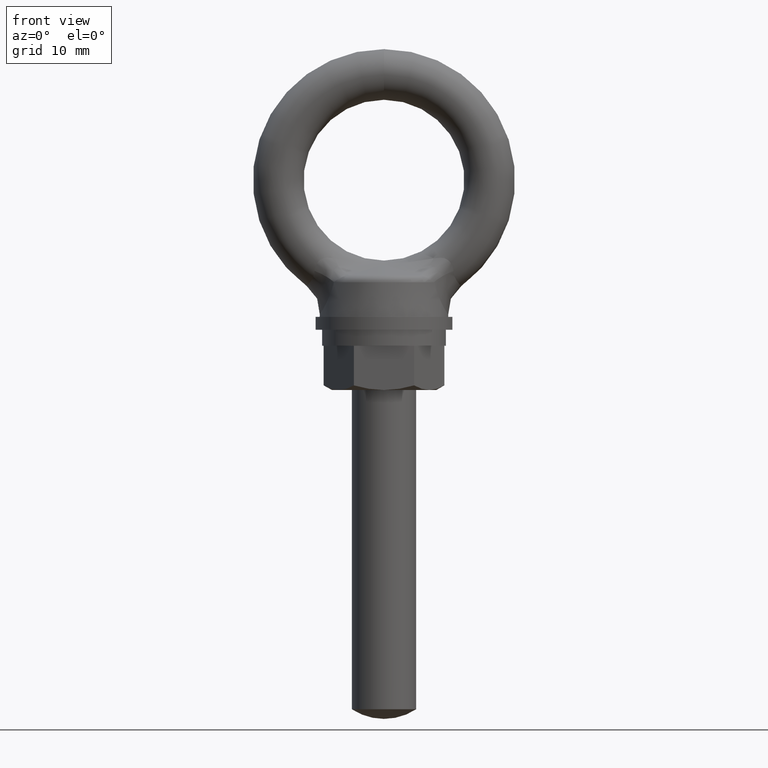
[diagram: clean part render]
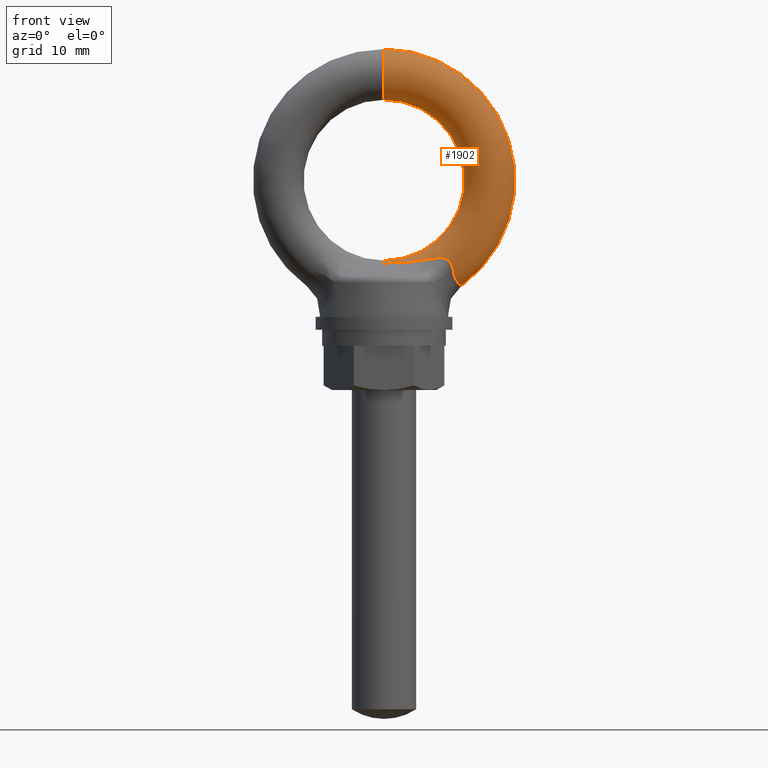
[diagram: same view with one face highlighted and labeled with its STEP entity id]
A machine part, front view. The second image highlights one B-rep face of the part: STEP entity #1902.
In plain terms, the highlighted toroidal blend (fillet) surface has major radius 13.15 mm and minor (blend) radius 3.15 mm.
Its self-contained STEP definition (entity closure, byte-faithful):
#1879 = VERTEX_POINT ( 'NONE', #6304 ) ;
#1881 = EDGE_CURVE ( 'NONE', #1879, #1882, #6299, .T. ) ;
#1882 = VERTEX_POINT ( 'NONE', #6294 ) ;
#1902 = ADVANCED_FACE ( 'NONE', ( #6584 ), #6583, .T. ) ;
#1903 = EDGE_LOOP ( 'NONE', ( #1904, #1908, #1910, #1911, #1913, #1914, #1953 ) ) ;
#1904 = ORIENTED_EDGE ( 'NONE', *, *, #1905, .T. ) ;
#1905 = EDGE_CURVE ( 'NONE', #1906, #1907, #6576, .T. ) ;
#1906 = VERTEX_POINT ( 'NONE', #6577 ) ;
#1907 = VERTEX_POINT ( 'NONE', #6578 ) ;
#1908 = ORIENTED_EDGE ( 'NONE', *, *, #1909, .T. ) ;
#1909 = EDGE_CURVE ( 'NONE', #1907, #1965, #6563, .T. ) ;
#1910 = ORIENTED_EDGE ( 'NONE', *, *, #1964, .T. ) ;
#1911 = ORIENTED_EDGE ( 'NONE', *, *, #1912, .F. ) ;
#1912 = EDGE_CURVE ( 'NONE', #1882, #1966, #6558, .T. ) ;
#1913 = ORIENTED_EDGE ( 'NONE', *, *, #1881, .F. ) ;
#1914 = ORIENTED_EDGE ( 'NONE', *, *, #1951, .T. ) ;
#1951 = EDGE_CURVE ( 'NONE', #1879, #1952, #6740, .T. ) ;
#1952 = VERTEX_POINT ( 'NONE', #6739 ) ;
#1953 = ORIENTED_EDGE ( 'NONE', *, *, #1954, .T. ) ;
#1954 = EDGE_CURVE ( 'NONE', #1952, #1906, #6737, .T. ) ;
#1964 = EDGE_CURVE ( 'NONE', #1965, #1966, #6645, .T. ) ;
#1965 = VERTEX_POINT ( 'NONE', #6640 ) ;
#1966 = VERTEX_POINT ( 'NONE', #6639 ) ;
#6294 = CARTESIAN_POINT ( 'NONE',  ( 0.0000000000000000000, 3.857510014540488600E-016, -9.999994000000079100 ) ) ;
#6295 = DIRECTION ( 'NONE',  ( 0.0000000000000000000, 0.0000000000000000000, 1.000000000000000000 ) ) ;
#6296 = DIRECTION ( 'NONE',  ( -1.000000000000000000, 0.0000000000000000000, 0.0000000000000000000 ) ) ;
#6297 = CARTESIAN_POINT ( 'NONE',  ( 0.0000000000000000000, 0.0000000000000000000, -13.14999400000007900 ) ) ;
#6298 = AXIS2_PLACEMENT_3D ( 'NONE', #6297, #6296, #6295 ) ;
#6299 = CIRCLE ( 'NONE', #6298, 3.149999999999999900 ) ;
#6304 = CARTESIAN_POINT ( 'NONE',  ( 2.405633154568344100E-011, -1.312813704617321800, -10.28660087697820900 ) ) ;
#6557 = CARTESIAN_POINT ( 'NONE',  ( 0.0000000000000000000, 3.857510014540488600E-016, 0.0000000000000000000 ) ) ;
#6558 = CIRCLE ( 'NONE', #6701, 9.999994000000079100 ) ;
#6559 = DIRECTION ( 'NONE',  ( 0.0000000000000000000, 0.0000000000000000000, -1.000000000000000000 ) ) ;
#6560 = DIRECTION ( 'NONE',  ( 0.0000000000000000000, -1.000000000000000000, 0.0000000000000000000 ) ) ;
#6561 = CARTESIAN_POINT ( 'NONE',  ( 0.0000000000000000000, 0.0000000000000000000, 0.0000000000000000000 ) ) ;
#6562 = AXIS2_PLACEMENT_3D ( 'NONE', #6561, #6560, #6559 ) ;
#6563 = CIRCLE ( 'NONE', #6562, 16.29999400000008000 ) ;
#6564 = CARTESIAN_POINT ( 'NONE',  ( 9.605629471948850200, 1.063394445858165000E-011, -13.16896681018166500 ) ) ;
#6565 = CARTESIAN_POINT ( 'NONE',  ( 9.605629471949654900, -0.3288313094512911900, -13.16896681018247000 ) ) ;
#6566 = CARTESIAN_POINT ( 'NONE',  ( 9.568145544613429400, -0.6525971414825594300, -13.13349661982346100 ) ) ;
#6567 = CARTESIAN_POINT ( 'NONE',  ( 9.426918765200479600, -1.280298832881481300, -12.98600933261296900 ) ) ;
#6568 = CARTESIAN_POINT ( 'NONE',  ( 9.325943957970119800, -1.571871202420887000, -12.87742981750775300 ) ) ;
#6569 = CARTESIAN_POINT ( 'NONE',  ( 9.091518607684706800, -2.108580143567561300, -12.57020578698317000 ) ) ;
#6570 = CARTESIAN_POINT ( 'NONE',  ( 8.963134906824215900, -2.340951425614637300, -12.37870491382906300 ) ) ;
#6571 = CARTESIAN_POINT ( 'NONE',  ( 8.798625817218155700, -2.631985268021914200, -12.01031922139253200 ) ) ;
#6572 = CARTESIAN_POINT ( 'NONE',  ( 8.750128101928920500, -2.717110268857308800, -11.87569216920616600 ) ) ;
#6573 = CARTESIAN_POINT ( 'NONE',  ( 8.676460462514539200, -2.860011705792931700, -11.59161050379998400 ) ) ;
#6574 = CARTESIAN_POINT ( 'NONE',  ( 8.650811705559398500, -2.918675118162927400, -11.44116862556248800 ) ) ;
#6575 = CARTESIAN_POINT ( 'NONE',  ( 8.638270361975658700, -2.966346601564374900, -11.28273147987913900 ) ) ;
#6576 = B_SPLINE_CURVE_WITH_KNOTS ( 'NONE', 3,
 ( #6575, #6574, #6573, #6572, #6571, #6570, #6569, #6568, #6567, #6566, #6565, #6564 ),
 .UNSPECIFIED., .F., .F.,
 ( 4, 2, 2, 2, 2, 4 ),
 ( 0.0000000000000000000, 0.0004891767999764401500, 0.0009783535999528802900, 0.001956707199905762300, 0.002935060799858644300, 0.003913414399811526400 ),
 .UNSPECIFIED. ) ;
#6577 = CARTESIAN_POINT ( 'NONE',  ( 8.638270361975658700, -2.966346601564374900, -11.28273147987913900 ) ) ;
#6578 = CARTESIAN_POINT ( 'NONE',  ( 9.605629471948850200, 1.063394445858165000E-011, -13.16896681018166500 ) ) ;
#6579 = DIRECTION ( 'NONE',  ( 0.0000000000000000000, 0.0000000000000000000, -1.000000000000000000 ) ) ;
#6580 = DIRECTION ( 'NONE',  ( 0.0000000000000000000, -1.000000000000000000, 0.0000000000000000000 ) ) ;
#6581 = CARTESIAN_POINT ( 'NONE',  ( 0.0000000000000000000, 0.0000000000000000000, 0.0000000000000000000 ) ) ;
#6582 = AXIS2_PLACEMENT_3D ( 'NONE', #6581, #6580, #6579 ) ;
#6583 = TOROIDAL_SURFACE ( 'NONE', #6582, 13.14999400000007900, 3.149999999999999900 ) ;
#6584 = FACE_OUTER_BOUND ( 'NONE', #1903, .T. ) ;
#6639 = CARTESIAN_POINT ( 'NONE',  ( 1.224605619058574800E-015, 0.0000000000000000000, 9.999994000000079100 ) ) ;
#6640 = CARTESIAN_POINT ( 'NONE',  ( 1.996107621966672900E-015, 0.0000000000000000000, 16.29999400000008000 ) ) ;
#6641 = DIRECTION ( 'NONE',  ( -1.224606353822377000E-016, 0.0000000000000000000, -1.000000000000000000 ) ) ;
#6642 = DIRECTION ( 'NONE',  ( 1.000000000000000000, 0.0000000000000000000, -1.224606353822377300E-016 ) ) ;
#6643 = CARTESIAN_POINT ( 'NONE',  ( 1.610356620512623500E-015, 0.0000000000000000000, 13.14999400000007900 ) ) ;
#6644 = AXIS2_PLACEMENT_3D ( 'NONE', #6643, #6642, #6641 ) ;
#6645 = CIRCLE ( 'NONE', #6644, 3.149999999999999900 ) ;
#6699 = DIRECTION ( 'NONE',  ( 0.0000000000000000000, 0.0000000000000000000, -1.000000000000000000 ) ) ;
#6700 = DIRECTION ( 'NONE',  ( 0.0000000000000000000, -1.000000000000000000, 0.0000000000000000000 ) ) ;
#6701 = AXIS2_PLACEMENT_3D ( 'NONE', #6557, #6700, #6699 ) ;
#6709 = CARTESIAN_POINT ( 'NONE',  ( 8.638270361975658700, -2.966346601564374900, -11.28273147987913900 ) ) ;
#6710 = CARTESIAN_POINT ( 'NONE',  ( 8.627139117473609200, -3.008658091874286000, -11.14210838036579600 ) ) ;
#6711 = CARTESIAN_POINT ( 'NONE',  ( 8.603686432614054500, -3.045332863273609600, -11.00219151901486600 ) ) ;
#6712 = CARTESIAN_POINT ( 'NONE',  ( 8.527244133965364600, -3.104457261412054700, -10.72386701542960100 ) ) ;
#6713 = CARTESIAN_POINT ( 'NONE',  ( 8.474108339566376100, -3.126412946336328600, -10.58663198228069500 ) ) ;
#6714 = CARTESIAN_POINT ( 'NONE',  ( 8.337469134086715500, -3.150747575029896600, -10.33080336397281100 ) ) ;
#6715 = CARTESIAN_POINT ( 'NONE',  ( 8.252974340131372000, -3.153330695610657500, -10.21020472863709100 ) ) ;
#6716 = CARTESIAN_POINT ( 'NONE',  ( 8.051076310819247800, -3.137738157214582800, -9.997241811669852000 ) ) ;
#6717 = CARTESIAN_POINT ( 'NONE',  ( 7.934677359537121600, -3.119539349701021500, -9.906628462196753300 ) ) ;
#6718 = CARTESIAN_POINT ( 'NONE',  ( 7.556947721987288700, -3.043199538883839300, -9.696061031618112800 ) ) ;
#6719 = CARTESIAN_POINT ( 'NONE',  ( 7.268305599785186600, -2.965086383317141900, -9.639736937210145100 ) ) ;
#6720 = CARTESIAN_POINT ( 'NONE',  ( 6.709625392527209800, -2.818983013630106200, -9.626921887126100000 ) ) ;
#6721 = CARTESIAN_POINT ( 'NONE',  ( 6.431783696476733400, -2.748466229713131300, -9.664827838598414500 ) ) ;
#6722 = CARTESIAN_POINT ( 'NONE',  ( 6.152873488992940800, -2.685483719806820000, -9.719800085488371300 ) ) ;
#6727 = CARTESIAN_POINT ( 'NONE',  ( 6.152873488992940800, -2.685483719806820000, -9.719800085488371300 ) ) ;
#6728 = CARTESIAN_POINT ( 'NONE',  ( 5.137989287450225500, -2.456306183229437900, -9.919830286588736000 ) ) ;
#6729 = CARTESIAN_POINT ( 'NONE',  ( 4.129910037085254600, -2.184052472263845700, -10.08887596478883500 ) ) ;
#6730 = CARTESIAN_POINT ( 'NONE',  ( 2.601509210700143600, -1.782965284301422100, -10.23413825679224200 ) ) ;
#6731 = CARTESIAN_POINT ( 'NONE',  ( 2.089012060512445600, -1.648204601836391200, -10.26440317099976000 ) ) ;
#6732 = CARTESIAN_POINT ( 'NONE',  ( 1.314171478473154600, -1.472729882344279400, -10.28420969009729900 ) ) ;
#6733 = CARTESIAN_POINT ( 'NONE',  ( 1.054832090291410100, -1.418906298790836100, -10.28666943924459300 ) ) ;
#6734 = CARTESIAN_POINT ( 'NONE',  ( 0.5304530896458232700, -1.338226462899224000, -10.28768822976219400 ) ) ;
#6735 = CARTESIAN_POINT ( 'NONE',  ( 0.2653119023858590600, -1.312813704618769600, -10.28660087697825000 ) ) ;
#6736 = CARTESIAN_POINT ( 'NONE',  ( 2.405633154568344100E-011, -1.312813704617321800, -10.28660087697820900 ) ) ;
#6737 = B_SPLINE_CURVE_WITH_KNOTS ( 'NONE', 3,
 ( #6722, #6721, #6720, #6719, #6718, #6717, #6716, #6715, #6714, #6713, #6712, #6711, #6710, #6709 ),
 .UNSPECIFIED., .F., .F.,
 ( 4, 2, 2, 2, 2, 2, 4 ),
 ( 0.0000000000000000000, 0.0008643190382437489900, 0.001728638076487498000, 0.002160797595609372500, 0.002592957114731247000, 0.003025116633853121500, 0.003457276152974996000 ),
 .UNSPECIFIED. ) ;
#6739 = CARTESIAN_POINT ( 'NONE',  ( 6.152873488992940800, -2.685483719806820000, -9.719800085488371300 ) ) ;
#6740 = B_SPLINE_CURVE_WITH_KNOTS ( 'NONE', 3,
 ( #6736, #6735, #6734, #6733, #6732, #6731, #6730, #6729, #6728, #6727 ),
 .UNSPECIFIED., .F., .F.,
 ( 4, 2, 2, 2, 4 ),
 ( 0.006348908282578376000, 0.007143543900012299500, 0.007938179517446223100, 0.009527450752314072000, 0.01270599322204977000 ),
 .UNSPECIFIED. ) ;